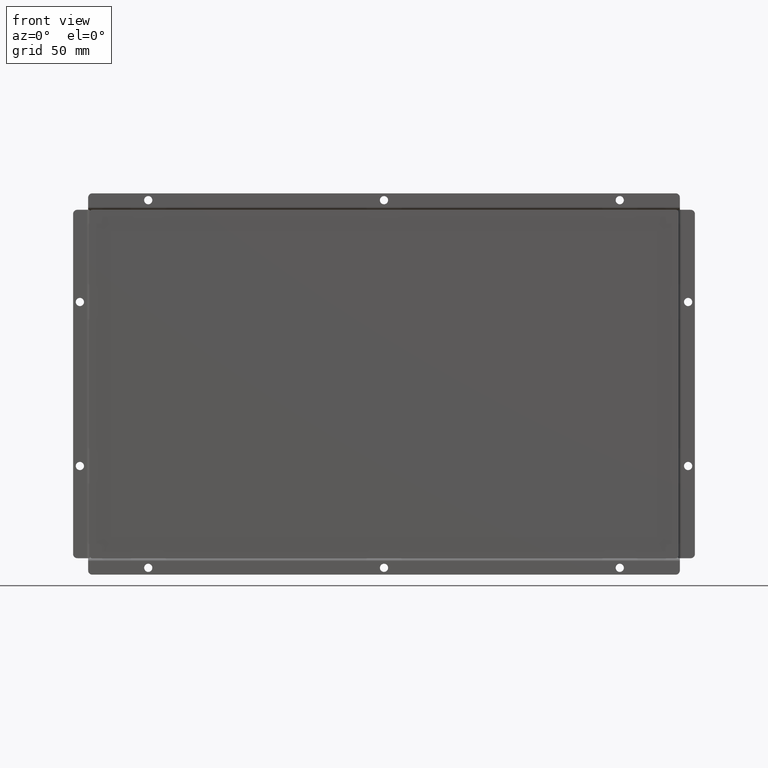
[diagram: clean part render]
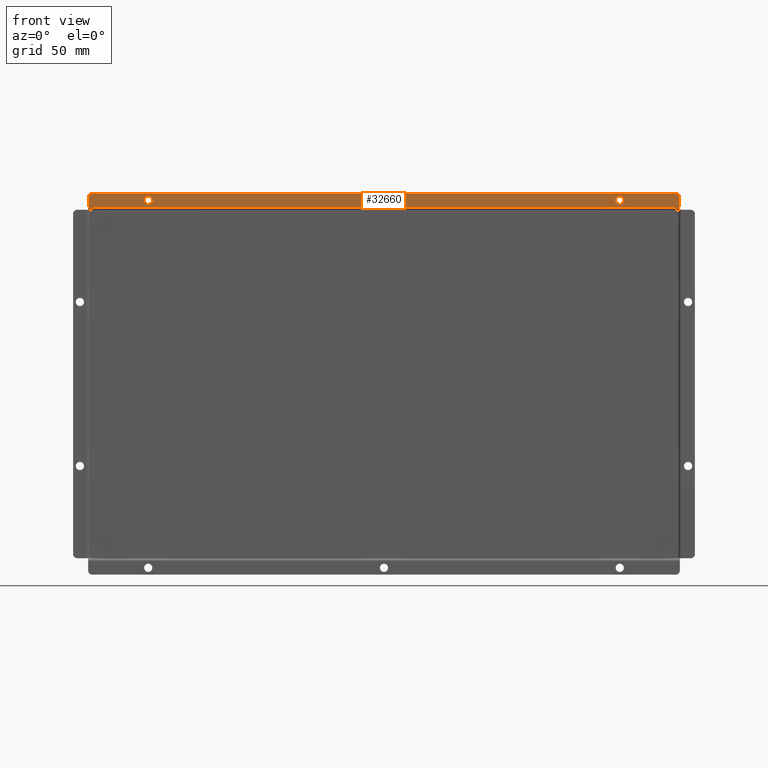
[diagram: same view with one face highlighted and labeled with its STEP entity id]
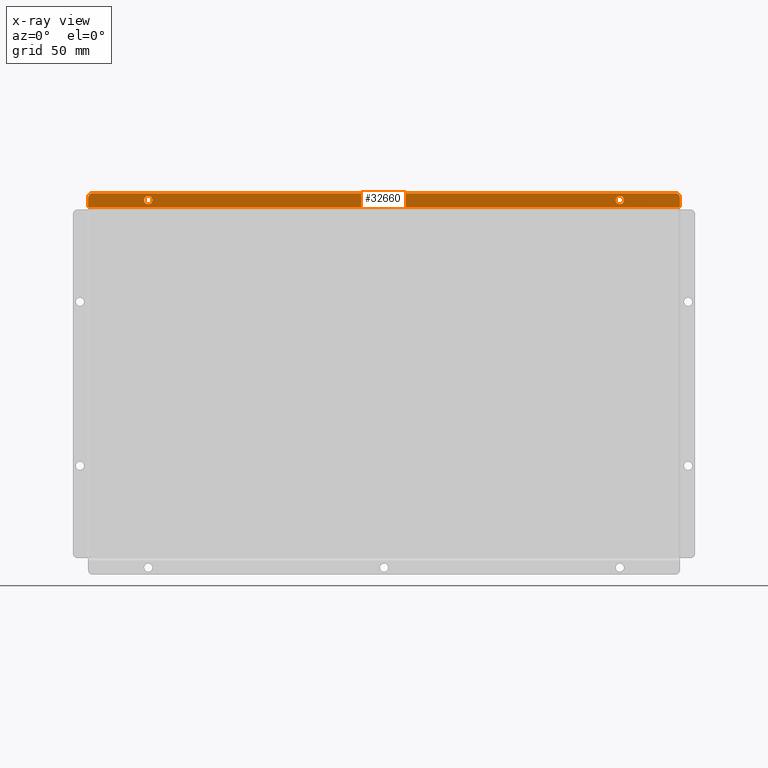
[diagram: x-ray of the same camera — body ghosted, the highlighted face saturated]
A machine part, front view. The second image highlights one B-rep face of the part: STEP entity #32660.
The next image is the same camera in x-ray: the body ghosted, the highlighted face saturated — about 0% of this face is hidden behind the body in this view.
In plain terms, the highlighted planar face has unit normal (-0, -1, 0).
Its self-contained STEP definition (entity closure, byte-faithful):
#752=FACE_BOUND('',#4912,.T.);
#753=FACE_BOUND('',#4913,.T.);
#754=FACE_BOUND('',#4914,.T.);
#1608=CIRCLE('',#35026,3.);
#1614=CIRCLE('',#35035,3.);
#1620=CIRCLE('',#35044,3.);
#1636=CIRCLE('',#35076,3.);
#1640=CIRCLE('',#35085,3.);
#3030=FACE_OUTER_BOUND('',#4911,.T.);
#4911=EDGE_LOOP('',(#21667,#21668,#21669,#21670,#21671,#21672));
#4912=EDGE_LOOP('',(#21673));
#4913=EDGE_LOOP('',(#21674));
#4914=EDGE_LOOP('',(#21675));
#7104=LINE('',#47859,#10200);
#7114=LINE('',#47885,#10210);
#7149=LINE('',#47980,#10245);
#7151=LINE('',#47987,#10247);
#10200=VECTOR('',#38661,10.);
#10210=VECTOR('',#38687,10.);
#10245=VECTOR('',#38796,10.);
#10247=VECTOR('',#38804,10.);
#13273=VERTEX_POINT('',#47709);
#13279=VERTEX_POINT('',#47727);
#13285=VERTEX_POINT('',#47745);
#13321=VERTEX_POINT('',#47846);
#13322=VERTEX_POINT('',#47847);
#13326=VERTEX_POINT('',#47857);
#13333=VERTEX_POINT('',#47879);
#13334=VERTEX_POINT('',#47883);
#13357=VERTEX_POINT('',#47979);
#16488=EDGE_CURVE('',#13273,#13273,#1608,.T.);
#16497=EDGE_CURVE('',#13279,#13279,#1614,.T.);
#16506=EDGE_CURVE('',#13285,#13285,#1620,.T.);
#16554=EDGE_CURVE('',#13321,#13322,#1636,.T.);
#16560=EDGE_CURVE('',#13326,#13321,#7104,.T.);
#16570=EDGE_CURVE('',#13333,#13326,#1640,.T.);
#16573=EDGE_CURVE('',#13334,#13333,#7114,.T.);
#16620=EDGE_CURVE('',#13334,#13357,#7149,.T.);
#16624=EDGE_CURVE('',#13322,#13357,#7151,.T.);
#21667=ORIENTED_EDGE('',*,*,#16554,.F.);
#21668=ORIENTED_EDGE('',*,*,#16560,.F.);
#21669=ORIENTED_EDGE('',*,*,#16570,.F.);
#21670=ORIENTED_EDGE('',*,*,#16573,.F.);
#21671=ORIENTED_EDGE('',*,*,#16620,.T.);
#21672=ORIENTED_EDGE('',*,*,#16624,.F.);
#21673=ORIENTED_EDGE('',*,*,#16488,.T.);
#21674=ORIENTED_EDGE('',*,*,#16497,.T.);
#21675=ORIENTED_EDGE('',*,*,#16506,.T.);
#30314=PLANE('',#35131);
#32660=ADVANCED_FACE('',(#3030,#752,#753,#754),#30314,.T.);
#35026=AXIS2_PLACEMENT_3D('',#47711,#38513,#38514);
#35035=AXIS2_PLACEMENT_3D('',#47729,#38534,#38535);
#35044=AXIS2_PLACEMENT_3D('',#47747,#38555,#38556);
#35076=AXIS2_PLACEMENT_3D('',#47848,#38651,#38652);
#35085=AXIS2_PLACEMENT_3D('',#47880,#38681,#38682);
#35131=AXIS2_PLACEMENT_3D('',#47997,#38816,#38817);
#38513=DIRECTION('center_axis',(-8.31781451640142E-17,2.39064879916521E-16,
-1.));
#38514=DIRECTION('ref_axis',(1.,0.,1.34769822524749E-15));
#38534=DIRECTION('center_axis',(-8.31781451640142E-17,2.39064879916521E-16,
-1.));
#38535=DIRECTION('ref_axis',(1.,0.,1.34769822524749E-15));
#38555=DIRECTION('center_axis',(-8.31781451640142E-17,2.39064879916521E-16,
-1.));
#38556=DIRECTION('ref_axis',(1.,0.,1.34769822524749E-15));
#38651=DIRECTION('center_axis',(-8.31781451640142E-17,2.39064879916521E-16,
-1.));
#38652=DIRECTION('ref_axis',(-0.707106781186552,-0.707106781186543,0.));
#38661=DIRECTION('',(-1.,-8.31781451640136E-17,8.31781451640143E-17));
#38681=DIRECTION('center_axis',(-8.31781451640142E-17,2.39064879916521E-16,
-1.));
#38682=DIRECTION('ref_axis',(0.707106781186547,-0.707106781186547,0.));
#38687=DIRECTION('',(8.31781451640136E-17,-1.,-5.36784352850644E-16));
#38796=DIRECTION('',(-1.,-8.31781451640136E-17,8.31781451640142E-17));
#38804=DIRECTION('',(1.56232647262607E-14,1.,9.67330421331546E-16));
#38816=DIRECTION('center_axis',(8.31781451640142E-17,-2.39064879916521E-16,
1.));
#38817=DIRECTION('ref_axis',(8.31781451640136E-17,-1.,-2.39064879916521E-16));
#47709=CARTESIAN_POINT('',(169.5,-134.5,15.5000000000003));
#47711=CARTESIAN_POINT('Origin',(172.5,-134.5,15.5000000000003));
#47727=CARTESIAN_POINT('',(-3.00000000000002,-134.5,15.5));
#47729=CARTESIAN_POINT('Origin',(-2.08893224913362E-14,-134.5,15.5));
#47745=CARTESIAN_POINT('',(-175.5,-134.5,15.4999999999998));
#47747=CARTESIAN_POINT('Origin',(-172.5,-134.5,15.4999999999998));
#47846=CARTESIAN_POINT('',(-213.45,-139.5,15.5000000000001));
#47847=CARTESIAN_POINT('',(-216.45,-136.5,15.5000000000001));
#47848=CARTESIAN_POINT('Origin',(-213.45,-136.5,15.5));
#47857=CARTESIAN_POINT('',(213.45,-139.5,15.5));
#47859=CARTESIAN_POINT('',(216.45,-139.5,15.5));
#47879=CARTESIAN_POINT('',(216.45,-136.5,15.5));
#47880=CARTESIAN_POINT('Origin',(213.45,-136.5,15.5));
#47883=CARTESIAN_POINT('',(216.45,-129.55,15.5));
#47885=CARTESIAN_POINT('',(216.45,-129.55,15.5));
#47979=CARTESIAN_POINT('',(-216.45,-129.55,15.5000000000001));
#47980=CARTESIAN_POINT('',(1.79051041133056E-13,-129.55,15.5));
#47987=CARTESIAN_POINT('',(-216.45,-127.288053289415,15.5000000000001));
#47997=CARTESIAN_POINT('Origin',(1.80619781042028E-13,-133.394026644708,
15.5));